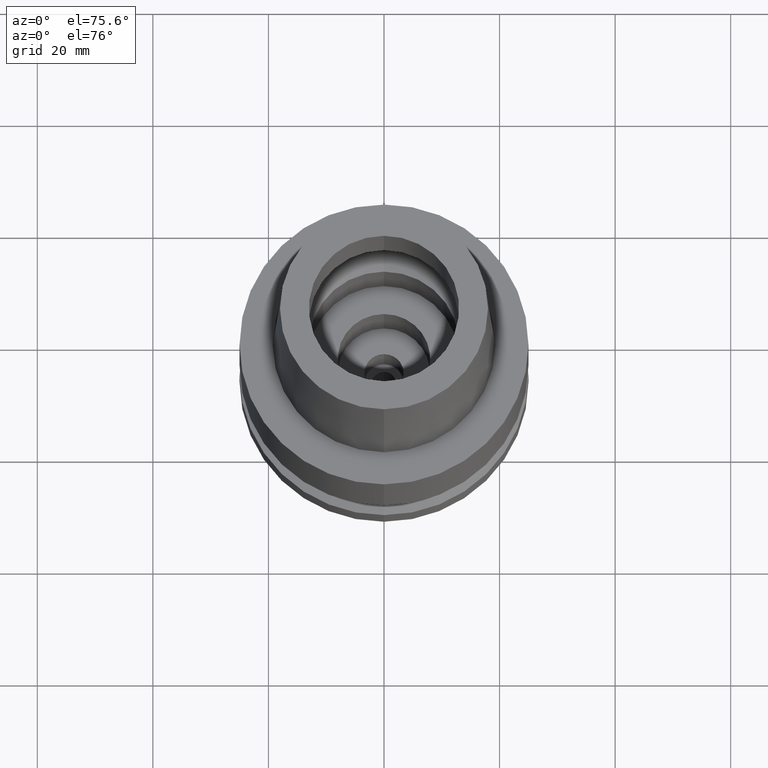
[diagram: clean part render]
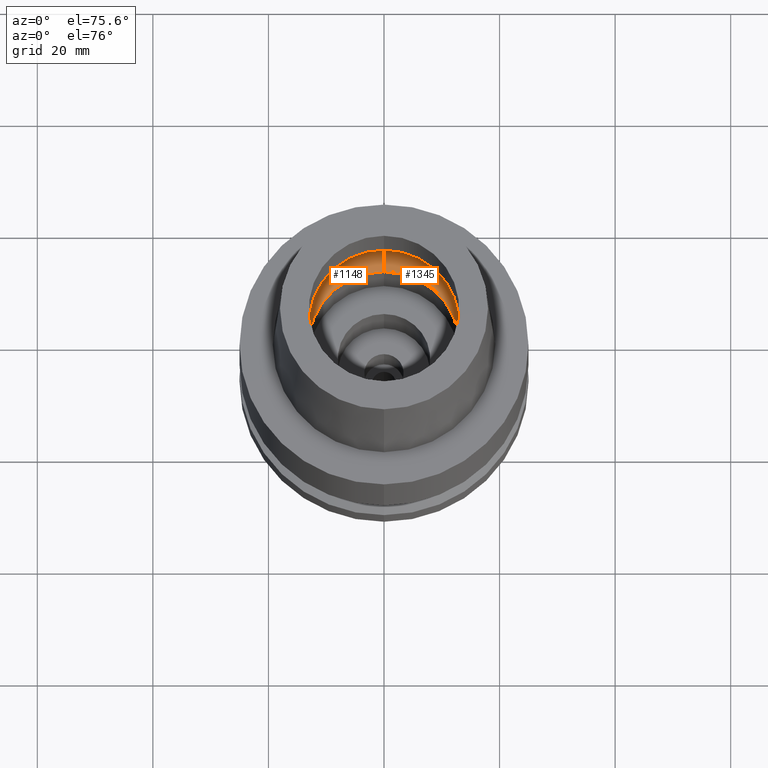
[diagram: same view with one multi-face feature highlighted, each face labeled with its STEP entity id]
A machine part, auxiliary view. The highlighted faces form ONE feature: a constant-radius fillet chain: 2 tangent blend faces with common blend radius 6 mm. The faces share edges in the B-rep.
Their STEP definitions:
[1] entity #1148 (Torus):
#12 = AXIS2_PLACEMENT_3D ( 'NONE', #255, #1356, #673 ) ;
#33 = EDGE_CURVE ( 'NONE', #2283, #1529, #150, .T. ) ;
#102 = AXIS2_PLACEMENT_3D ( 'NONE', #386, #1260, #1233 ) ;
#126 = CARTESIAN_POINT ( 'NONE',  ( 0.0000000000000000000, -10.00000000000000000, 5.245999999999999552 ) ) ;
#150 = CIRCLE ( 'NONE', #1684, 6.000000000000000000 ) ;
#201 = VERTEX_POINT ( 'NONE', #1761 ) ;
#255 = CARTESIAN_POINT ( 'NONE',  ( 0.0000000000000000000, 0.0000000000000000000, 5.245999999999999552 ) ) ;
#344 = DIRECTION ( 'NONE',  ( 0.0000000000000000000, 0.0000000000000000000, -1.000000000000000000 ) ) ;
#346 = EDGE_LOOP ( 'NONE', ( #2121, #1966, #859, #2381 ) ) ;
#386 = CARTESIAN_POINT ( 'NONE',  ( 0.0000000000000000000, 0.0000000000000000000, 0.04984757729336999899 ) ) ;
#417 = EDGE_CURVE ( 'NONE', #1383, #201, #2497, .T. ) ;
#485 = DIRECTION ( 'NONE',  ( 0.0000000000000000000, 0.5000000000000169864, -0.8660254037844289376 ) ) ;
#489 = CARTESIAN_POINT ( 'NONE',  ( 0.0000000000000000000, 13.00000000000000000, 0.04984757729338000487 ) ) ;
#529 = AXIS2_PLACEMENT_3D ( 'NONE', #2422, #344, #1200 ) ;
#640 = CARTESIAN_POINT ( 'NONE',  ( 0.0000000000000000000, 16.00000000000000000, 5.245999999999999552 ) ) ;
#673 = DIRECTION ( 'NONE',  ( 0.0000000000000000000, -1.000000000000000000, 0.0000000000000000000 ) ) ;
#859 = ORIENTED_EDGE ( 'NONE', *, *, #1473, .F. ) ;
#887 = CIRCLE ( 'NONE', #12, 16.00000000000000000 ) ;
#1119 = CIRCLE ( 'NONE', #102, 13.00000000000000000 ) ;
#1148 = ADVANCED_FACE ( 'NONE', ( #2658 ), #1725, .F. ) ;
#1200 = DIRECTION ( 'NONE',  ( 0.0000000000000000000, -1.000000000000000000, 0.0000000000000000000 ) ) ;
#1233 = DIRECTION ( 'NONE',  ( 0.0000000000000000000, 1.000000000000000000, 0.0000000000000000000 ) ) ;
#1260 = DIRECTION ( 'NONE',  ( 0.0000000000000000000, 0.0000000000000000000, 1.000000000000000000 ) ) ;
#1356 = DIRECTION ( 'NONE',  ( 0.0000000000000000000, 0.0000000000000000000, -1.000000000000000000 ) ) ;
#1383 = VERTEX_POINT ( 'NONE', #2543 ) ;
#1396 = EDGE_CURVE ( 'NONE', #201, #1529, #887, .T. ) ;
#1473 = EDGE_CURVE ( 'NONE', #2283, #1383, #1119, .T. ) ;
#1529 = VERTEX_POINT ( 'NONE', #640 ) ;
#1663 = DIRECTION ( 'NONE',  ( -1.000000000000000000, 0.0000000000000000000, 0.0000000000000000000 ) ) ;
#1684 = AXIS2_PLACEMENT_3D ( 'NONE', #2553, #2563, #485 ) ;
#1725 = TOROIDAL_SURFACE ( 'NONE', #529, 10.00000000000000000, 6.000000000000000000 ) ;
#1761 = CARTESIAN_POINT ( 'NONE',  ( 0.0000000000000000000, -16.00000000000000000, 5.245999999999999552 ) ) ;
#1966 = ORIENTED_EDGE ( 'NONE', *, *, #417, .F. ) ;
#2121 = ORIENTED_EDGE ( 'NONE', *, *, #1396, .F. ) ;
#2206 = DIRECTION ( 'NONE',  ( 0.0000000000000000000, -0.5000000000000169864, -0.8660254037844289376 ) ) ;
#2283 = VERTEX_POINT ( 'NONE', #489 ) ;
#2321 = AXIS2_PLACEMENT_3D ( 'NONE', #126, #1663, #2206 ) ;
#2381 = ORIENTED_EDGE ( 'NONE', *, *, #33, .T. ) ;
#2422 = CARTESIAN_POINT ( 'NONE',  ( 0.0000000000000000000, 0.0000000000000000000, 5.245999999999999552 ) ) ;
#2497 = CIRCLE ( 'NONE', #2321, 6.000000000000000000 ) ;
#2543 = CARTESIAN_POINT ( 'NONE',  ( 0.0000000000000000000, -13.00000000000000000, 0.04984757729336999899 ) ) ;
#2553 = CARTESIAN_POINT ( 'NONE',  ( 0.0000000000000000000, 10.00000000000000000, 5.245999999999999552 ) ) ;
#2563 = DIRECTION ( 'NONE',  ( 1.000000000000000000, 0.0000000000000000000, 0.0000000000000000000 ) ) ;
#2658 = FACE_OUTER_BOUND ( 'NONE', #346, .T. ) ;
[2] entity #1345 (Torus):
#33 = EDGE_CURVE ( 'NONE', #2283, #1529, #150, .T. ) ;
#75 = FACE_OUTER_BOUND ( 'NONE', #2588, .T. ) ;
#126 = CARTESIAN_POINT ( 'NONE',  ( 0.0000000000000000000, -10.00000000000000000, 5.245999999999999552 ) ) ;
#150 = CIRCLE ( 'NONE', #1684, 6.000000000000000000 ) ;
#201 = VERTEX_POINT ( 'NONE', #1761 ) ;
#373 = EDGE_CURVE ( 'NONE', #1529, #201, #2586, .T. ) ;
#417 = EDGE_CURVE ( 'NONE', #1383, #201, #2497, .T. ) ;
#459 = CARTESIAN_POINT ( 'NONE',  ( 0.0000000000000000000, 0.0000000000000000000, 5.245999999999999552 ) ) ;
#485 = DIRECTION ( 'NONE',  ( 0.0000000000000000000, 0.5000000000000169864, -0.8660254037844289376 ) ) ;
#489 = CARTESIAN_POINT ( 'NONE',  ( 0.0000000000000000000, 13.00000000000000000, 0.04984757729338000487 ) ) ;
#545 = CARTESIAN_POINT ( 'NONE',  ( 0.0000000000000000000, 0.0000000000000000000, 5.245999999999999552 ) ) ;
#640 = CARTESIAN_POINT ( 'NONE',  ( 0.0000000000000000000, 16.00000000000000000, 5.245999999999999552 ) ) ;
#813 = CIRCLE ( 'NONE', #1940, 13.00000000000000000 ) ;
#822 = CARTESIAN_POINT ( 'NONE',  ( 0.0000000000000000000, 0.0000000000000000000, 0.04984757729336999899 ) ) ;
#1139 = ORIENTED_EDGE ( 'NONE', *, *, #33, .F. ) ;
#1345 = ADVANCED_FACE ( 'NONE', ( #75 ), #2636, .F. ) ;
#1383 = VERTEX_POINT ( 'NONE', #2543 ) ;
#1422 = ORIENTED_EDGE ( 'NONE', *, *, #417, .T. ) ;
#1529 = VERTEX_POINT ( 'NONE', #640 ) ;
#1559 = AXIS2_PLACEMENT_3D ( 'NONE', #459, #2145, #2347 ) ;
#1629 = DIRECTION ( 'NONE',  ( 0.0000000000000000000, 0.0000000000000000000, -1.000000000000000000 ) ) ;
#1663 = DIRECTION ( 'NONE',  ( -1.000000000000000000, 0.0000000000000000000, 0.0000000000000000000 ) ) ;
#1684 = AXIS2_PLACEMENT_3D ( 'NONE', #2553, #2563, #485 ) ;
#1693 = DIRECTION ( 'NONE',  ( 0.0000000000000000000, -1.000000000000000000, 0.0000000000000000000 ) ) ;
#1761 = CARTESIAN_POINT ( 'NONE',  ( 0.0000000000000000000, -16.00000000000000000, 5.245999999999999552 ) ) ;
#1940 = AXIS2_PLACEMENT_3D ( 'NONE', #822, #2048, #1693 ) ;
#1946 = EDGE_CURVE ( 'NONE', #1383, #2283, #813, .T. ) ;
#1987 = ORIENTED_EDGE ( 'NONE', *, *, #373, .F. ) ;
#2048 = DIRECTION ( 'NONE',  ( 0.0000000000000000000, 0.0000000000000000000, 1.000000000000000000 ) ) ;
#2145 = DIRECTION ( 'NONE',  ( 0.0000000000000000000, 0.0000000000000000000, -1.000000000000000000 ) ) ;
#2206 = DIRECTION ( 'NONE',  ( 0.0000000000000000000, -0.5000000000000169864, -0.8660254037844289376 ) ) ;
#2218 = ORIENTED_EDGE ( 'NONE', *, *, #1946, .F. ) ;
#2283 = VERTEX_POINT ( 'NONE', #489 ) ;
#2321 = AXIS2_PLACEMENT_3D ( 'NONE', #126, #1663, #2206 ) ;
#2347 = DIRECTION ( 'NONE',  ( 0.0000000000000000000, -1.000000000000000000, 0.0000000000000000000 ) ) ;
#2407 = AXIS2_PLACEMENT_3D ( 'NONE', #545, #1629, #2686 ) ;
#2497 = CIRCLE ( 'NONE', #2321, 6.000000000000000000 ) ;
#2543 = CARTESIAN_POINT ( 'NONE',  ( 0.0000000000000000000, -13.00000000000000000, 0.04984757729336999899 ) ) ;
#2553 = CARTESIAN_POINT ( 'NONE',  ( 0.0000000000000000000, 10.00000000000000000, 5.245999999999999552 ) ) ;
#2563 = DIRECTION ( 'NONE',  ( 1.000000000000000000, 0.0000000000000000000, 0.0000000000000000000 ) ) ;
#2586 = CIRCLE ( 'NONE', #2407, 16.00000000000000000 ) ;
#2588 = EDGE_LOOP ( 'NONE', ( #2218, #1422, #1987, #1139 ) ) ;
#2636 = TOROIDAL_SURFACE ( 'NONE', #1559, 10.00000000000000000, 6.000000000000000000 ) ;
#2686 = DIRECTION ( 'NONE',  ( 0.0000000000000000000, 1.000000000000000000, 0.0000000000000000000 ) ) ;